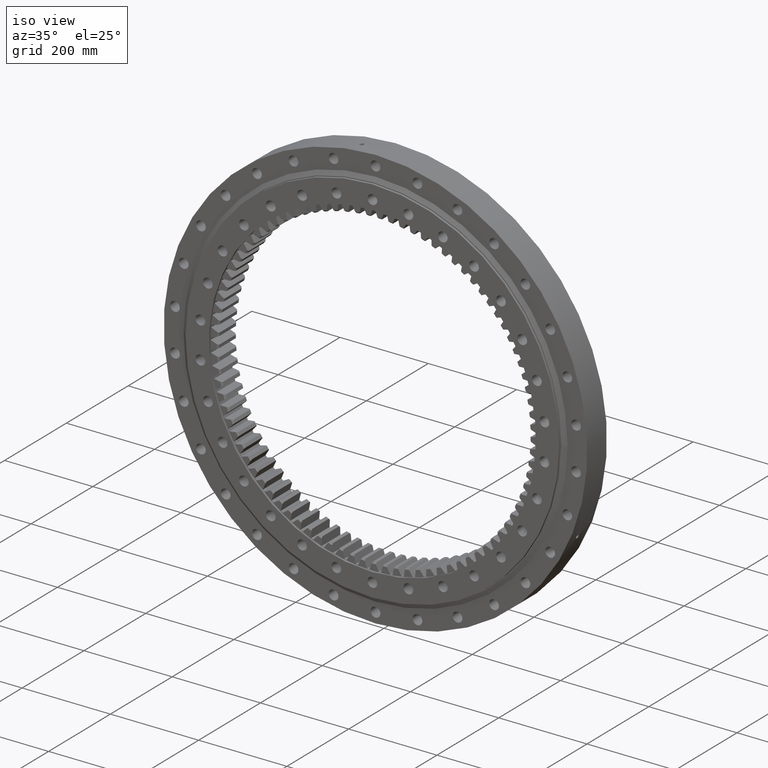
[diagram: clean part render]
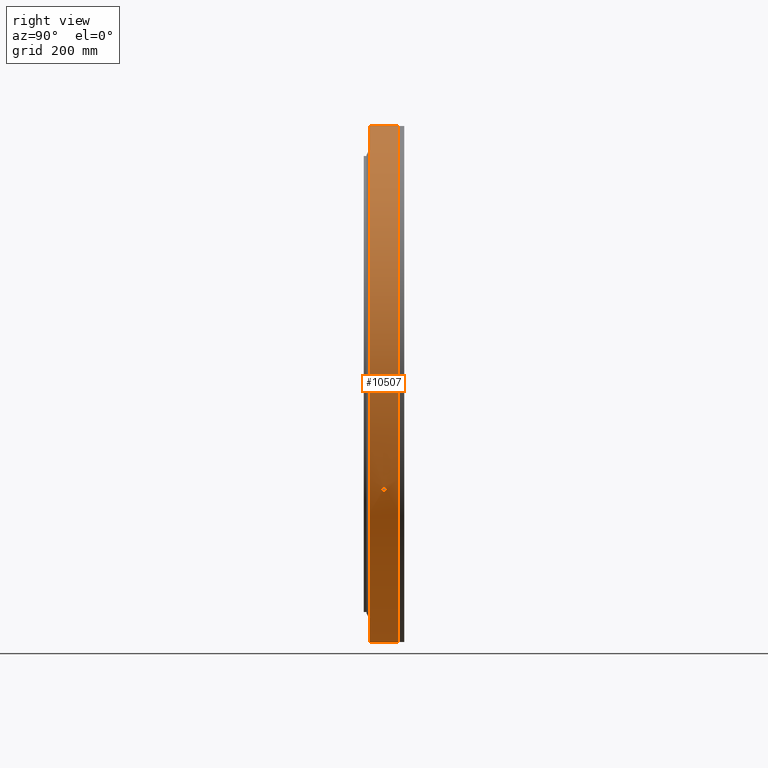
[diagram: tour spotlight — one face highlighted and labeled with its STEP entity id]
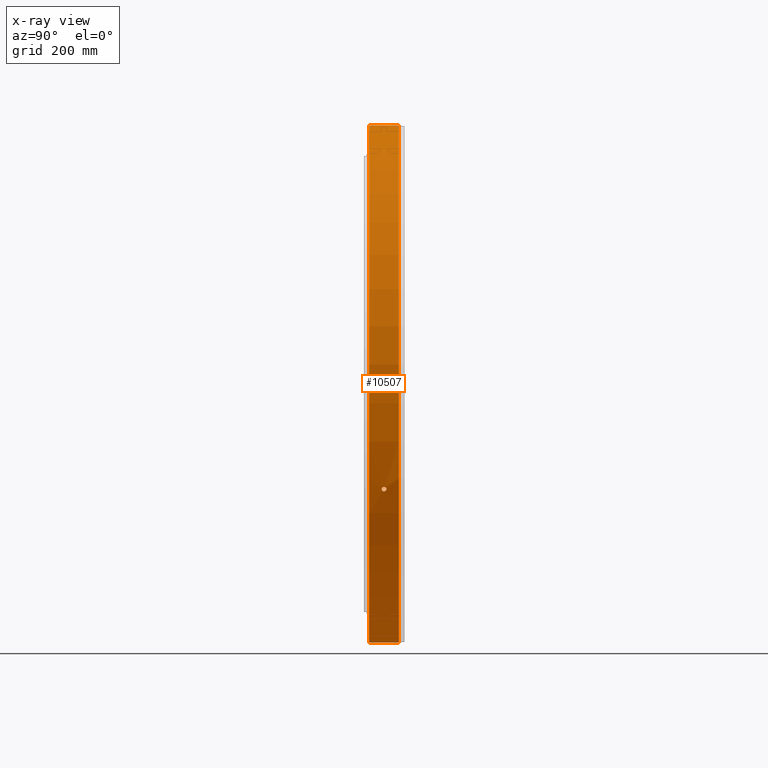
[diagram: x-ray of the same camera — body ghosted, this tour face saturated]
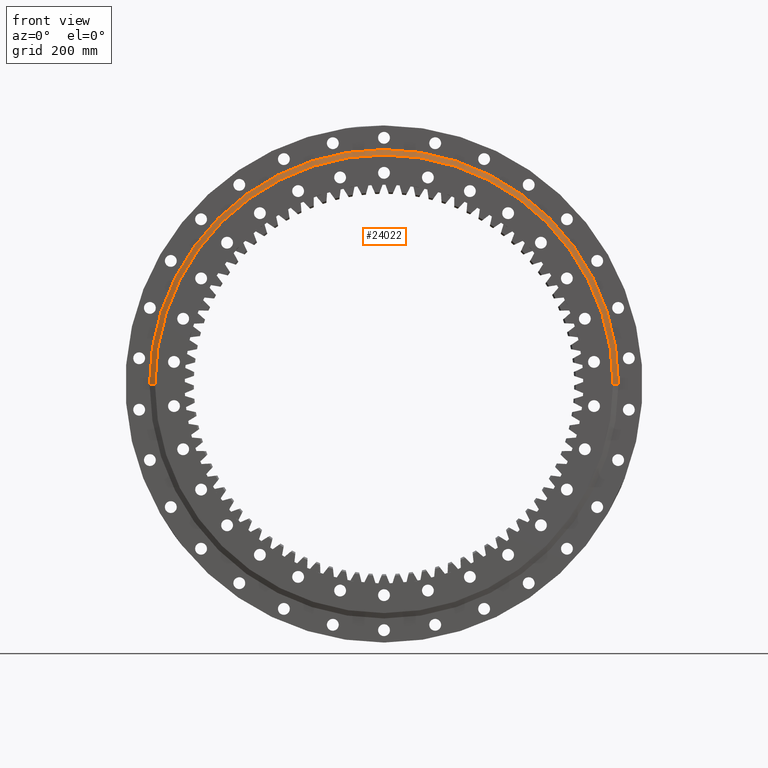
[diagram: tour spotlight — one face highlighted and labeled with its STEP entity id]
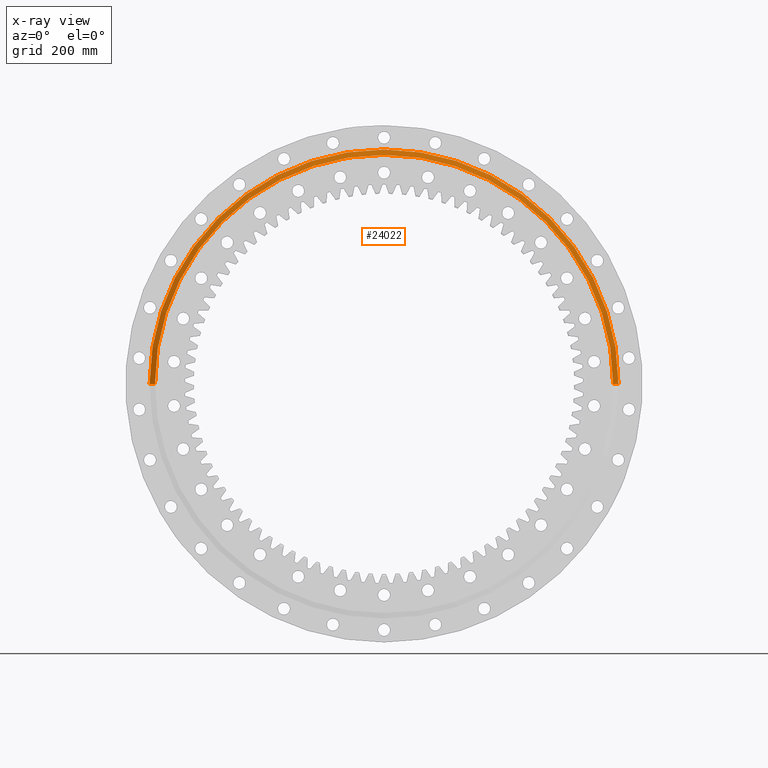
[diagram: x-ray of the same camera — body ghosted, this tour face saturated]
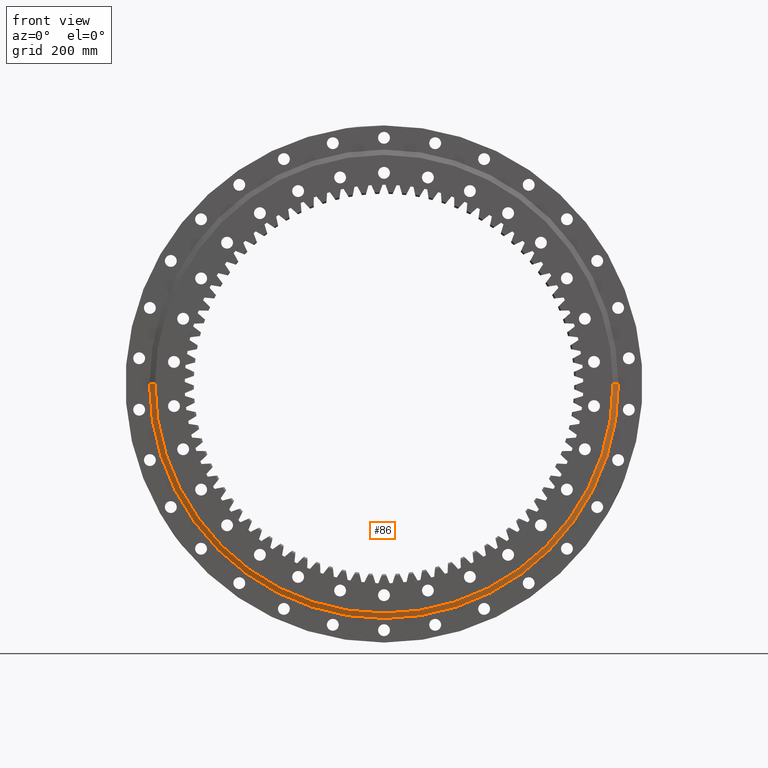
[diagram: tour spotlight — one face highlighted and labeled with its STEP entity id]
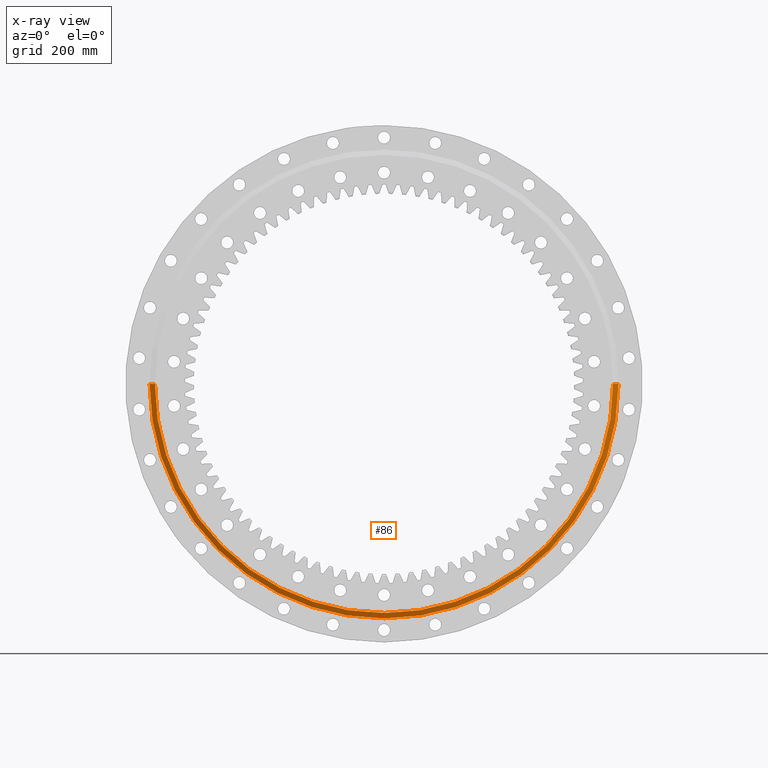
[diagram: x-ray of the same camera — body ghosted, this tour face saturated]
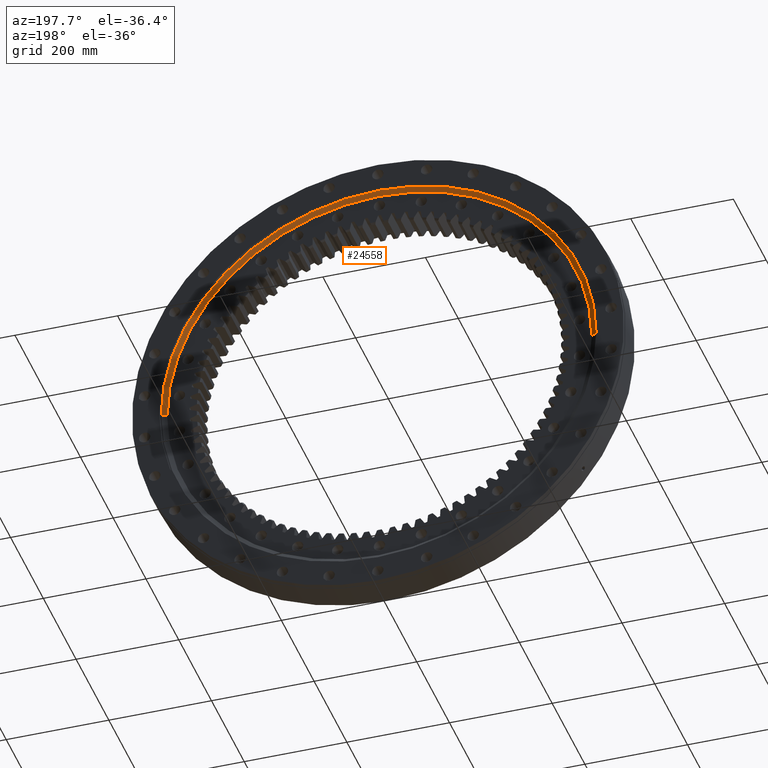
[diagram: tour spotlight — one face highlighted and labeled with its STEP entity id]
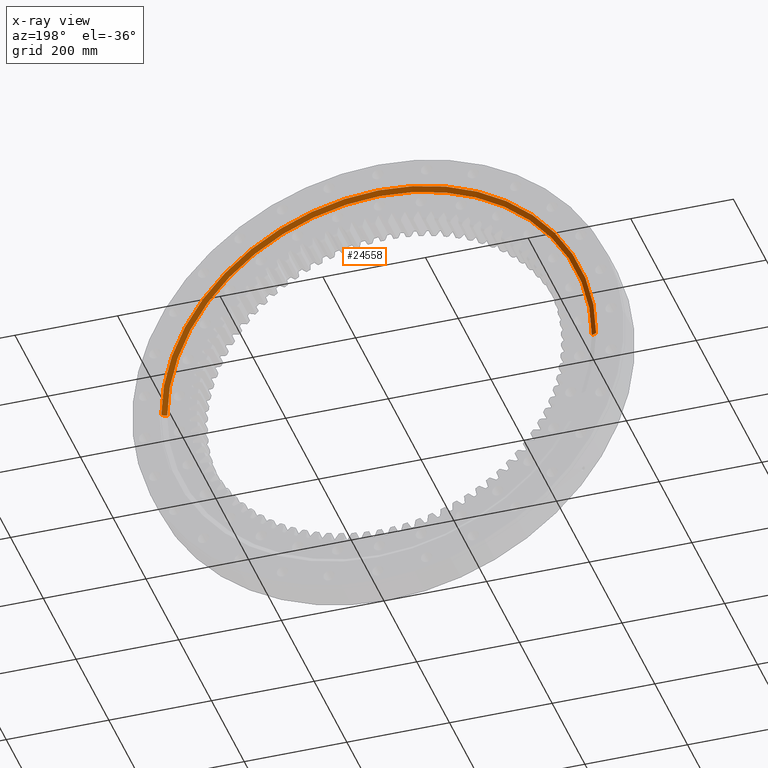
[diagram: x-ray of the same camera — body ghosted, this tour face saturated]
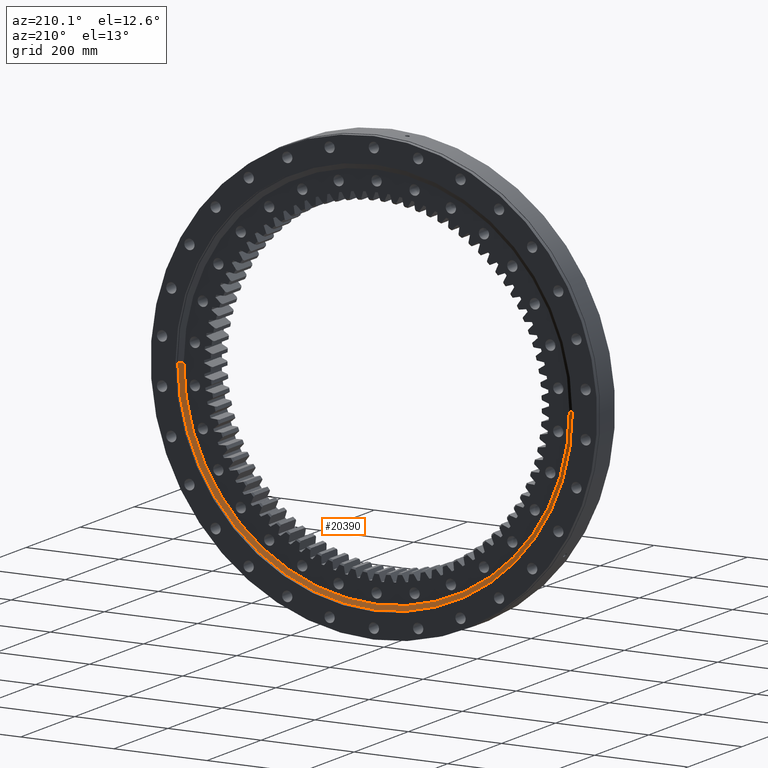
[diagram: tour spotlight — one face highlighted and labeled with its STEP entity id]
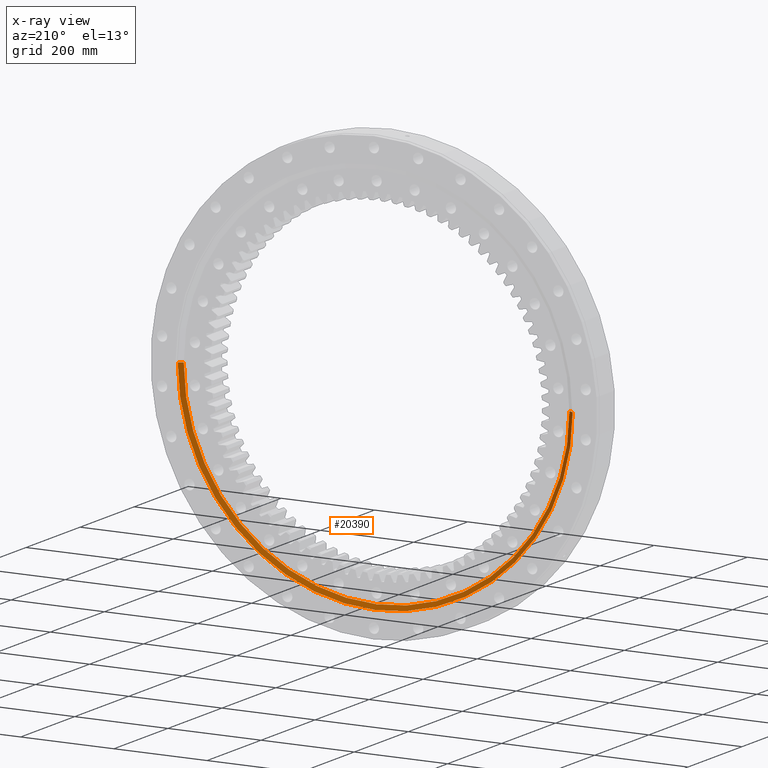
[diagram: x-ray of the same camera — body ghosted, this tour face saturated]
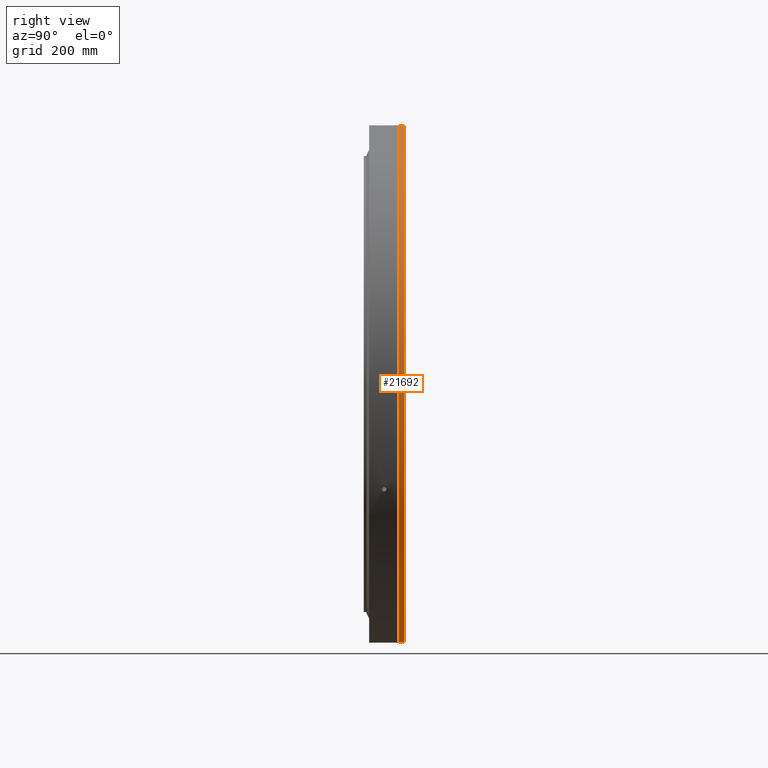
[diagram: tour spotlight — one face highlighted and labeled with its STEP entity id]
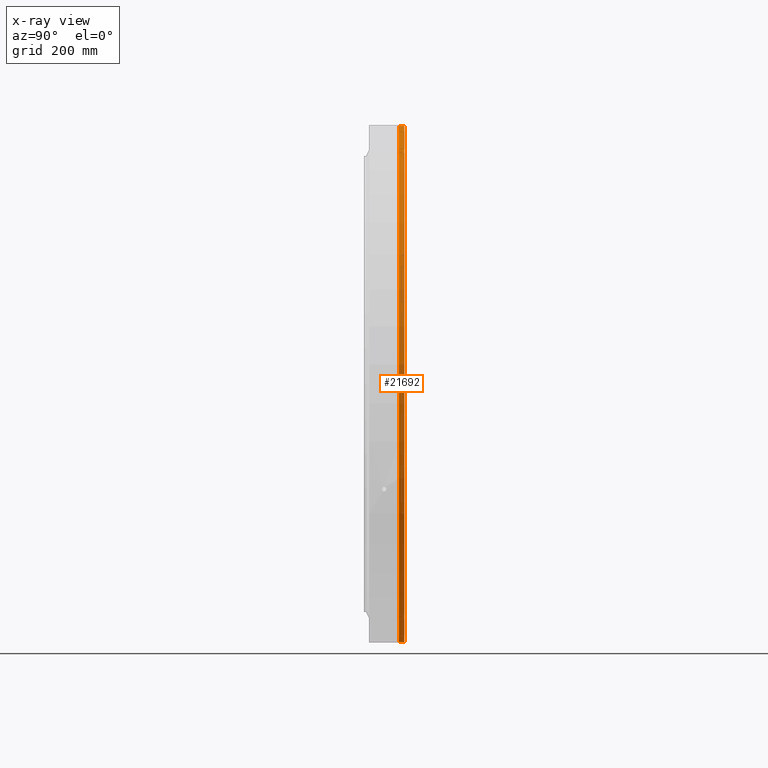
[diagram: x-ray of the same camera — body ghosted, this tour face saturated]
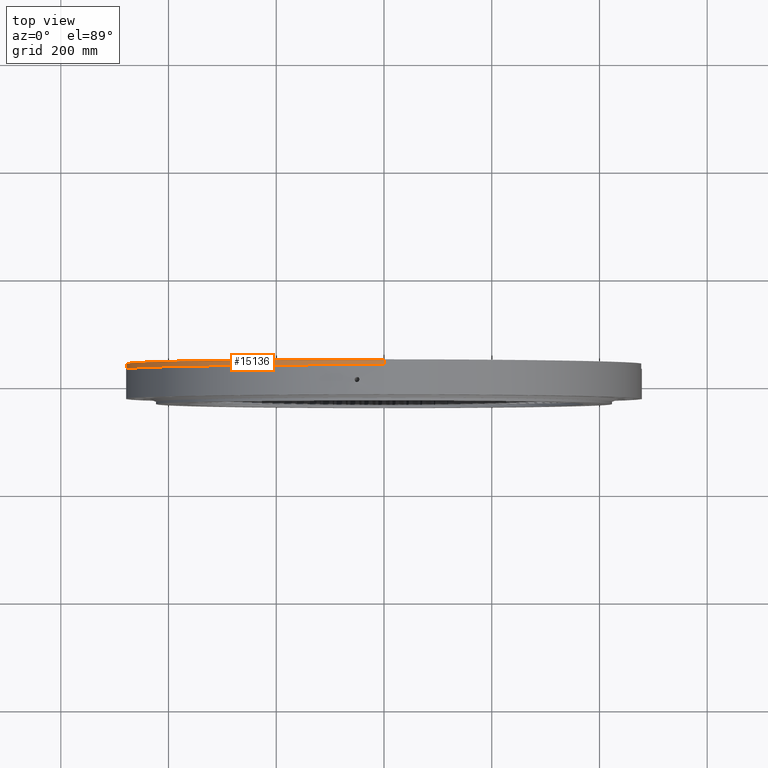
[diagram: tour spotlight — one face highlighted and labeled with its STEP entity id]
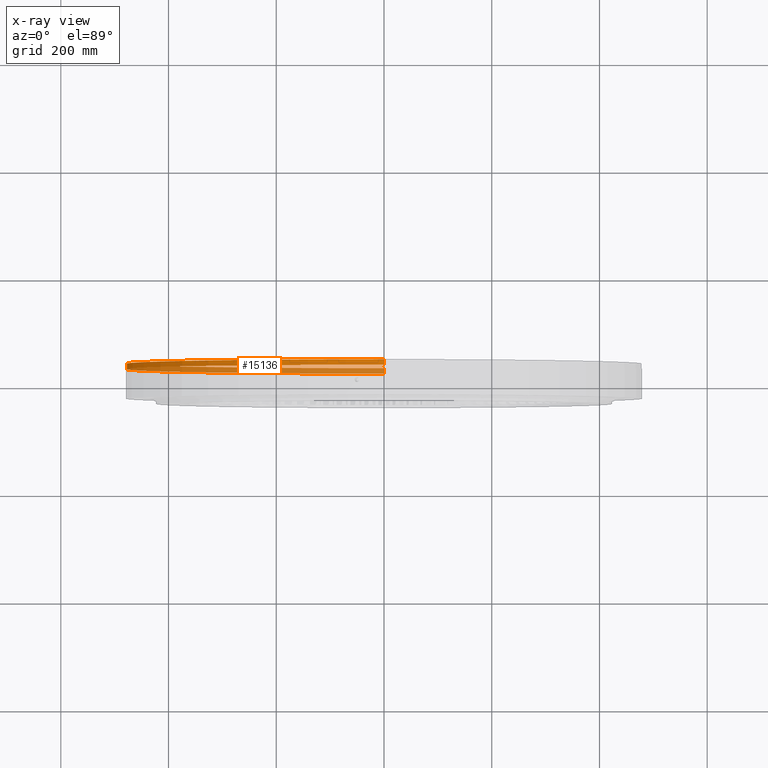
[diagram: x-ray of the same camera — body ghosted, this tour face saturated]
A machine part: a face-by-face anatomy tour. The part has 738 B-rep faces; the first image is the clean iso view, then the 7 largest visible faces are spotlighted one at a time (largest first), each with its STEP entity span.

Face 1 — right view, entity #10507. An x-ray twin of the same camera follows (body ghosted, this face saturated) — the face is partly hidden behind the body. In plain terms, the highlighted cylindrical surface (partial cylindrical patch) has radius 480 mm, axis along (0, -1, -0).
Definition (entity closure, byte-faithful):
#119 = CARTESIAN_POINT ( 'NONE',  ( 440.1311284732452100, 1.995682324606422400, -191.5322492682324500 ) ) ;
#203 = CARTESIAN_POINT ( 'NONE',  ( 438.2615825801492000, 4.470844770991369000, -195.7724917276373400 ) ) ;
#296 = CARTESIAN_POINT ( 'NONE',  ( 436.6644584664019200, 0.5919618365307528500, -199.3091920096234200 ) ) ;
#778 = CARTESIAN_POINT ( 'NONE',  ( 436.6640575047874800, -0.5854540645739583200, -199.3100704715085400 ) ) ;
#855 = CARTESIAN_POINT ( 'NONE',  ( 438.2605519447464000, -4.470445786932987900, -195.7747974633172700 ) ) ;
#949 = CARTESIAN_POINT ( 'NONE',  ( 440.1308055285157400, -1.997038219429903000, -191.5329910672971600 ) ) ;
#1489 = LINE ( 'NONE', #7637, #11437 ) ;
#2122 = CARTESIAN_POINT ( 'NONE',  ( 439.9454319620413100, 2.743369639967448300, -191.9584422957777600 ) ) ;
#2210 = CARTESIAN_POINT ( 'NONE',  ( 437.9110522948454300, 4.270948294085532600, -196.5552962693009000 ) ) ;
#2286 = CARTESIAN_POINT ( 'NONE',  ( 436.6522342516781800, -7.333038119292233300E-009, -199.3359634461818900 ) ) ;
#2792 = CARTESIAN_POINT ( 'NONE',  ( 436.7476759622354600, -1.449886345495770000, -199.1267940246320900 ) ) ;
#2874 = CARTESIAN_POINT ( 'NONE',  ( 438.6209584255698800, -4.500248141122877900, -194.9660043660032900 ) ) ;
#2875 = CIRCLE ( 'NONE', #23229, 480.0000000000000000 ) ;
#2960 = CARTESIAN_POINT ( 'NONE',  ( 440.2548680998386900, -1.173646348569838500, -191.2476261408578200 ) ) ;
#3414 = ORIENTED_EDGE ( 'NONE', *, *, #6204, .F. ) ;
#3417 = CARTESIAN_POINT ( 'NONE',  ( 2.601341135008604100E-015, -22.16364734299516900, -7.744460120454373600E-016 ) ) ;
#3821 = VERTEX_POINT ( 'NONE', #13753 ) ;
#4061 = CARTESIAN_POINT ( 'NONE',  ( 440.3128640393603100, -7.333038592388355300E-009, -191.1140543273984300 ) ) ;
#4131 = CARTESIAN_POINT ( 'NONE',  ( 439.7029879514782400, 3.390113224750384000, -192.5131826724582400 ) ) ;
#4217 = CARTESIAN_POINT ( 'NONE',  ( 437.5793837202563700, 3.904600354785765500, -197.2925300280704400 ) ) ;
#4224 = FACE_BOUND ( 'NONE', #24033, .T. ) ;
#4530 = CARTESIAN_POINT ( 'NONE',  ( 436.6522342516781800, -7.333038119292233300E-009, -199.3359634461818900 ) ) ;
#4805 = CARTESIAN_POINT ( 'NONE',  ( 436.8982438213087100, -2.252556029768258700, -198.7962565771561300 ) ) ;
#4887 = CARTESIAN_POINT ( 'NONE',  ( 438.9730500401763600, -4.357378810567926300, -194.1719444030119100 ) ) ;
#4981 = CARTESIAN_POINT ( 'NONE',  ( 440.3128640393601400, -0.2972601088633504700, -191.1140543273984300 ) ) ;
#5730 = DIRECTION ( 'NONE',  ( 1.173697223544192200E-016, -1.000000000000000000, -3.494217355385783800E-017 ) ) ;
#6126 = CARTESIAN_POINT ( 'NONE',  ( 439.4143031971442500, 3.905344578566756200, -193.1712469880785400 ) ) ;
#6204 = EDGE_CURVE ( 'NONE', #25096, #3821, #2875, .T. ) ;
#6213 = CARTESIAN_POINT ( 'NONE',  ( 437.2850026581897400, 3.392749870917849200, -197.9441097680219200 ) ) ;
#6700 = CARTESIAN_POINT ( 'NONE',  ( 436.6522342516781200, -0.2936301318778762900, -199.3359634461818900 ) ) ;
#6787 = CARTESIAN_POINT ( 'NONE',  ( 437.1114622943250100, -2.972154368278949300, -198.3270342164488500 ) ) ;
#6869 = CARTESIAN_POINT ( 'NONE',  ( 439.3085453491581200, -4.045622942340140900, -193.4116761411514700 ) ) ;
#7151 = ORIENTED_EDGE ( 'NONE', *, *, #10549, .F. ) ;
#7396 = DIRECTION ( 'NONE',  ( 5.551115123125782700E-017, -3.614007241618347900E-017, 1.000000000000000000 ) ) ;
#7566 = CARTESIAN_POINT ( 'NONE',  ( -8.282705781506809400E-014, -22.16364734299515100, -480.0000000000000000 ) ) ;
#7628 = VERTEX_POINT ( 'NONE', #4530 ) ;
#7637 = CARTESIAN_POINT ( 'NONE',  ( 2.924669372601236100E-014, -22.16364734299518700, 480.0000000000000000 ) ) ;
#8034 = CARTESIAN_POINT ( 'NONE',  ( 440.3128640393603100, -7.333038592388355300E-009, -191.1140543273984300 ) ) ;
#8116 = CARTESIAN_POINT ( 'NONE',  ( 439.0903211503485300, 4.269501079124923500, -193.9065836883990500 ) ) ;
#8205 = CARTESIAN_POINT ( 'NONE',  ( 437.0344114235065300, 2.744956082407460100, -198.4967248796985500 ) ) ;
#8206 = VERTEX_POINT ( 'NONE', #4061 ) ;
#8257 = VECTOR ( 'NONE', #9538, 1000.000000000000000 ) ;
#8642 = CARTESIAN_POINT ( 'NONE',  ( -3.227667364746538500E-015, 27.50000000000008500, 9.609097727310935600E-016 ) ) ;
#8776 = CARTESIAN_POINT ( 'NONE',  ( 437.3779233266320100, -3.577391969612102200, -197.7387469902961900 ) ) ;
#8858 = CARTESIAN_POINT ( 'NONE',  ( 439.6092046346710700, -3.581691690546928700, -192.7272865101139700 ) ) ;
#8989 = ORIENTED_EDGE ( 'NONE', *, *, #18031, .T. ) ;
#9067 = AXIS2_PLACEMENT_3D ( 'NONE', #8642, #22527, #10648 ) ;
#9152 = EDGE_CURVE ( 'NONE', #16332, #19379, #11380, .T. ) ;
#9538 = DIRECTION ( 'NONE',  ( 1.173697223544192200E-016, -1.000000000000000000, -3.494217355385783800E-017 ) ) ;
#9713 = ORIENTED_EDGE ( 'NONE', *, *, #20646, .T. ) ;
#10021 = CARTESIAN_POINT ( 'NONE',  ( 440.3012484282037300, 0.5896850171849633600, -191.1408221716029100 ) ) ;
#10109 = CARTESIAN_POINT ( 'NONE',  ( 438.7403720503958800, 4.471354070360739300, -194.6971245443903300 ) ) ;
#10199 = CARTESIAN_POINT ( 'NONE',  ( 436.8411724755165400, 1.994554482004947700, -198.9215996007770000 ) ) ;
#10507 = ADVANCED_FACE ( 'NONE', ( #25327, #4224 ), #14174, .T. ) ;
#10549 = EDGE_CURVE ( 'NONE', #19379, #25096, #18821, .T. ) ;
#10609 = CARTESIAN_POINT ( 'NONE',  ( 2.664535259100375700E-014, 27.50000000000004600, 480.0000000000000000 ) ) ;
#10648 = DIRECTION ( 'NONE',  ( -5.551115123125783900E-017, 8.673617379884035500E-017, -1.000000000000000000 ) ) ;
#10791 = CARTESIAN_POINT ( 'NONE',  ( 437.6854398399182700, -4.042875762597478900, -197.0571738247368200 ) ) ;
#10871 = CARTESIAN_POINT ( 'NONE',  ( 439.8687916001911200, -2.976678462919610400, -192.1340401450461300 ) ) ;
#11380 = CIRCLE ( 'NONE', #9067, 480.0000000000000000 ) ;
#11437 = VECTOR ( 'NONE', #5730, 1000.000000000000000 ) ;
#12023 = CARTESIAN_POINT ( 'NONE',  ( 440.2212308059357600, 1.450672711516713700, -191.3250655522891500 ) ) ;
#12108 = CARTESIAN_POINT ( 'NONE',  ( 438.3830887518495800, 4.500103738460542700, -195.5002650725334100 ) ) ;
#12186 = CARTESIAN_POINT ( 'NONE',  ( 436.7122045642362900, 1.168563050024399300, -199.2045523875640600 ) ) ;
#12772 = CARTESIAN_POINT ( 'NONE',  ( 438.0256353755420400, -4.355728442268895300, -196.2998356254257700 ) ) ;
#12850 = CARTESIAN_POINT ( 'NONE',  ( 440.0747494528846500, -2.259570114722869900, -191.6617904897645100 ) ) ;
#13384 = DIRECTION ( 'NONE',  ( 1.173697223544192200E-016, -1.000000000000000000, -3.494217355385783800E-017 ) ) ;
#13753 = CARTESIAN_POINT ( 'NONE',  ( 2.987301995575027600E-014, -27.49999999999993200, 480.0000000000000000 ) ) ;
#13800 = CARTESIAN_POINT ( 'NONE',  ( -8.542839895007671600E-014, 27.50000000000012800, -480.0000000000000000 ) ) ;
#14047 = CARTESIAN_POINT ( 'NONE',  ( 440.0759564968296900, 2.254171555036000200, -191.6590180145173300 ) ) ;
#14125 = CARTESIAN_POINT ( 'NONE',  ( 438.0258593772684900, 4.355941555043546700, -196.2993372370629600 ) ) ;
#14174 = CYLINDRICAL_SURFACE ( 'NONE', #21224, 480.0000000000000000 ) ;
#14211 = CARTESIAN_POINT ( 'NONE',  ( 436.6522342516782400, 0.2936964174255321000, -199.3359634461818400 ) ) ;
#14687 = CARTESIAN_POINT ( 'NONE',  ( 436.7118082642534800, -1.165415293260505100, -199.2054211874463800 ) ) ;
#14780 = CARTESIAN_POINT ( 'NONE',  ( 438.3795997497057300, -4.499748685515051200, -195.5080933155906800 ) ) ;
#14862 = CARTESIAN_POINT ( 'NONE',  ( 440.2204890513358500, -1.455749924503497700, -191.3267719420573500 ) ) ;
#16018 = CARTESIAN_POINT ( 'NONE',  ( 439.8693827544266200, 2.974981823169037900, -192.1326865251639900 ) ) ;
#16103 = CARTESIAN_POINT ( 'NONE',  ( 437.6876623621948300, 4.045564435084286500, -197.0522378188300600 ) ) ;
#16332 = VERTEX_POINT ( 'NONE', #10609 ) ;
#16682 = CARTESIAN_POINT ( 'NONE',  ( 436.8406021134912300, -1.991447610567026900, -198.9228516336532700 ) ) ;
#16723 = ORIENTED_EDGE ( 'NONE', *, *, #23805, .T. ) ;
#16768 = CARTESIAN_POINT ( 'NONE',  ( 438.7401353666558100, -4.471227366295399200, -194.6976534868103700 ) ) ;
#16842 = CARTESIAN_POINT ( 'NONE',  ( 440.3012524025802500, -0.5914365197641752200, -191.1408133362392600 ) ) ;
#17168 = DIRECTION ( 'NONE',  ( 5.551115123125782700E-017, -3.614007241618347900E-017, 1.000000000000000000 ) ) ;
#17640 = B_SPLINE_CURVE_WITH_KNOTS ( 'NONE', 3,
 ( #8034, #19919, #10021, #23922, #12023, #119, #14047, #2122, #16018, #4131, #18015, #6126, #20000, #8116, #21992, #10109, #24000, #12108, #203, #14125, #2210, #16103, #4217, #18097, #6213, #20085, #8205, #22079, #10199, #24085, #12186, #296, #14211, #2286 ),
 .UNSPECIFIED., .F., .F.,
 ( 4, 2, 2, 2, 2, 2, 2, 2, 2, 2, 2, 2, 2, 2, 2, 2, 4 ),
 ( 4.793884443244766800E-018, 0.0008793209207578181400, 0.001758641841515631500, 0.002637962762273445100, 0.003517283683031258200, 0.004396604603789071800, 0.005275925524546885800, 0.006155246445304699000, 0.007034567366062512200, 0.007913888286820325300, 0.008793209207578138500, 0.009672530128335951600, 0.01055185104909376600, 0.01143117196985158000, 0.01231049289060939300, 0.01318981381136720600, 0.01406913473212501900 ),
 .UNSPECIFIED. ) ;
#17938 = B_SPLINE_CURVE_WITH_KNOTS ( 'NONE', 3,
 ( #20575, #6700, #778, #14687, #2792, #16682, #4805, #18677, #6787, #20663, #8776, #22661, #10791, #24655, #12772, #855, #14780, #2874, #16768, #4887, #18765, #6869, #20747, #8858, #22749, #10871, #24742, #12850, #949, #14862, #2960, #16842, #4981, #18855 ),
 .UNSPECIFIED., .F., .F.,
 ( 4, 2, 2, 2, 2, 2, 2, 2, 2, 2, 2, 2, 2, 2, 2, 2, 4 ),
 ( 0.01406913473212501900, 0.01494825715143687000, 0.01582737957074872200, 0.01670650199006057000, 0.01758562440937242200, 0.01846474682868427100, 0.01934386924799612300, 0.02022299166730797500, 0.02110211408661982800, 0.02198123650593168000, 0.02286035892524352800, 0.02373948134455537700, 0.02461860376386722900, 0.02549772618317908100, 0.02637684860249093300, 0.02725597102180278600, 0.02813509344111463400 ),
 .UNSPECIFIED. ) ;
#18015 = CARTESIAN_POINT ( 'NONE',  ( 439.6120747386226000, 3.576389606019484600, -192.7207416475063200 ) ) ;
#18031 = EDGE_CURVE ( 'NONE', #16332, #3821, #1489, .T. ) ;
#18097 = CARTESIAN_POINT ( 'NONE',  ( 437.3787020737008200, 3.578754795863977400, -197.7370234280906500 ) ) ;
#18213 = ORIENTED_EDGE ( 'NONE', *, *, #9152, .F. ) ;
#18677 = CARTESIAN_POINT ( 'NONE',  ( 437.0344572140178300, -2.745438163182617700, -198.4966253891563500 ) ) ;
#18765 = CARTESIAN_POINT ( 'NONE',  ( 439.0883212528946700, -4.271335216213850000, -193.9111152663451500 ) ) ;
#18821 = LINE ( 'NONE', #7566, #8257 ) ;
#18825 = EDGE_LOOP ( 'NONE', ( #7151, #18213, #8989, #3414 ) ) ;
#18855 = CARTESIAN_POINT ( 'NONE',  ( 440.3128640393603100, -7.333038592388355300E-009, -191.1140543273984300 ) ) ;
#19379 = VERTEX_POINT ( 'NONE', #13800 ) ;
#19919 = CARTESIAN_POINT ( 'NONE',  ( 440.3128640393601400, 0.2973272140416623500, -191.1140543273984300 ) ) ;
#20000 = CARTESIAN_POINT ( 'NONE',  ( 439.3088223895885600, 4.045121110633030700, -193.4110438839911400 ) ) ;
#20085 = CARTESIAN_POINT ( 'NONE',  ( 437.1115523127528500, 2.972766249274045900, -198.3268387696514000 ) ) ;
#20236 = CARTESIAN_POINT ( 'NONE',  ( -8.542839895007671600E-014, -27.49999999999989700, -480.0000000000000000 ) ) ;
#20575 = CARTESIAN_POINT ( 'NONE',  ( 436.6522342516781800, -7.333038119292233300E-009, -199.3359634461818900 ) ) ;
#20646 = EDGE_CURVE ( 'NONE', #7628, #8206, #17938, .T. ) ;
#20663 = CARTESIAN_POINT ( 'NONE',  ( 437.2825979858845900, -3.387315568996350100, -197.9494189657819700 ) ) ;
#20747 = CARTESIAN_POINT ( 'NONE',  ( 439.4126606098073500, -3.907536243736583700, -193.1749814569425000 ) ) ;
#21224 = AXIS2_PLACEMENT_3D ( 'NONE', #3417, #13384, #7396 ) ;
#21992 = CARTESIAN_POINT ( 'NONE',  ( 438.9756908710032800, 4.355842567544418600, -194.1659784748578700 ) ) ;
#22079 = CARTESIAN_POINT ( 'NONE',  ( 436.8995306654104000, 2.257525879738870400, -198.7934271061337800 ) ) ;
#22527 = DIRECTION ( 'NONE',  ( -1.173697223544192200E-016, 1.000000000000000000, 8.822830751849692900E-017 ) ) ;
#22661 = CARTESIAN_POINT ( 'NONE',  ( 437.5793015567401200, -3.904564935424450000, -197.2927133067140300 ) ) ;
#22749 = CARTESIAN_POINT ( 'NONE',  ( 439.7022216212733400, -3.391801529915579900, -192.5149332067183500 ) ) ;
#23229 = AXIS2_PLACEMENT_3D ( 'NONE', #23318, #23962, #17168 ) ;
#23318 = CARTESIAN_POINT ( 'NONE',  ( 3.227667364746518000E-015, -27.49999999999991500, -9.609097727310874400E-016 ) ) ;
#23805 = EDGE_CURVE ( 'NONE', #8206, #7628, #17640, .T. ) ;
#23922 = CARTESIAN_POINT ( 'NONE',  ( 440.2557083482652700, 1.164868335676053600, -191.2456915452949900 ) ) ;
#23962 = DIRECTION ( 'NONE',  ( 1.173697223544192200E-016, -1.000000000000000000, -3.494217355385783800E-017 ) ) ;
#24000 = CARTESIAN_POINT ( 'NONE',  ( 438.6218480214243400, 4.499895681576250100, -194.9639981773900700 ) ) ;
#24033 = EDGE_LOOP ( 'NONE', ( #16723, #9713 ) ) ;
#24085 = CARTESIAN_POINT ( 'NONE',  ( 436.7475073110189800, 1.449119632500600800, -199.1271644330003000 ) ) ;
#24655 = CARTESIAN_POINT ( 'NONE',  ( 437.9085197302924300, -4.268830055452625900, -196.5609380097672000 ) ) ;
#24742 = CARTESIAN_POINT ( 'NONE',  ( 439.9433277297841900, -2.750359227237958200, -191.9632658239732500 ) ) ;
#25096 = VERTEX_POINT ( 'NONE', #20236 ) ;
#25327 = FACE_OUTER_BOUND ( 'NONE', #18825, .T. ) ;

Face 2 — front view, entity #24022. An x-ray twin of the same camera follows (body ghosted, this face saturated) — the face is partly hidden behind the body. In plain terms, the highlighted conical surface has half-angle 63.206 deg.
Definition (entity closure, byte-faithful):
#424 = DIRECTION ( 'NONE',  ( -1.000000000000000000, 1.794893190898989200E-016, 0.0000000000000000000 ) ) ;
#879 = CIRCLE ( 'NONE', #24513, 425.2500000000000000 ) ;
#1335 = CARTESIAN_POINT ( 'NONE',  ( -8.869075346349655200E-015, -27.50000000000009600, 0.0000000000000000000 ) ) ;
#1679 = ORIENTED_EDGE ( 'NONE', *, *, #17052, .F. ) ;
#2243 = CARTESIAN_POINT ( 'NONE',  ( 425.2500000000000000, -32.55000000000008200, 5.207810513374119700E-014 ) ) ;
#3347 = DIRECTION ( 'NONE',  ( -1.000000000000000000, 1.833366568522300500E-016, 0.0000000000000000000 ) ) ;
#3579 = AXIS2_PLACEMENT_3D ( 'NONE', #14333, #22217, #424 ) ;
#3614 = DIRECTION ( 'NONE',  ( -0.8926347946143761100, 0.4507805712802520100, 0.0000000000000000000 ) ) ;
#4062 = CARTESIAN_POINT ( 'NONE',  ( 425.2500000000000000, -32.55000000000008200, 5.269042853331487300E-014 ) ) ;
#5451 = VERTEX_POINT ( 'NONE', #17404 ) ;
#7148 = LINE ( 'NONE', #2243, #11795 ) ;
#7466 = EDGE_CURVE ( 'NONE', #19815, #11210, #879, .T. ) ;
#7909 = DIRECTION ( 'NONE',  ( -1.000000000000000000, 1.794893190898989200E-016, 0.0000000000000000000 ) ) ;
#8251 = DIRECTION ( 'NONE',  ( 0.8926347946143763400, 0.4507805712802516700, 1.093162344032050900E-016 ) ) ;
#8787 = VECTOR ( 'NONE', #3614, 1000.000000000000100 ) ;
#9899 = CARTESIAN_POINT ( 'NONE',  ( -9.796714659370089600E-015, -32.55000000000001100, 0.0000000000000000000 ) ) ;
#11210 = VERTEX_POINT ( 'NONE', #4062 ) ;
#11795 = VECTOR ( 'NONE', #8251, 1000.000000000000100 ) ;
#12928 = AXIS2_PLACEMENT_3D ( 'NONE', #1335, #15239, #3347 ) ;
#13328 = CARTESIAN_POINT ( 'NONE',  ( -425.2500000000000000, -32.54999999999993300, 0.0000000000000000000 ) ) ;
#13594 = CARTESIAN_POINT ( 'NONE',  ( -425.2500000000000000, -32.54999999999993300, 0.0000000000000000000 ) ) ;
#14301 = CIRCLE ( 'NONE', #12928, 435.2500000000000000 ) ;
#14333 = CARTESIAN_POINT ( 'NONE',  ( -9.796714659370089600E-015, -32.55000000000001100, 0.0000000000000000000 ) ) ;
#15007 = CARTESIAN_POINT ( 'NONE',  ( 435.2500000000000000, -27.50000000000017800, 5.330275193288855500E-014 ) ) ;
#15239 = DIRECTION ( 'NONE',  ( 1.836909530733565900E-016, 1.000000000000000000, -0.0000000000000000000 ) ) ;
#15842 = CONICAL_SURFACE ( 'NONE', #3579, 425.2500000000000000, 1.103156723031674800 ) ;
#17052 = EDGE_CURVE ( 'NONE', #5451, #24233, #14301, .T. ) ;
#17404 = CARTESIAN_POINT ( 'NONE',  ( -435.2500000000000000, -27.50000000000001800, 0.0000000000000000000 ) ) ;
#18096 = LINE ( 'NONE', #13594, #8787 ) ;
#18775 = ORIENTED_EDGE ( 'NONE', *, *, #22085, .F. ) ;
#19126 = ORIENTED_EDGE ( 'NONE', *, *, #7466, .T. ) ;
#19815 = VERTEX_POINT ( 'NONE', #13328 ) ;
#21772 = DIRECTION ( 'NONE',  ( 1.836909530733565900E-016, 1.000000000000000000, -0.0000000000000000000 ) ) ;
#22085 = EDGE_CURVE ( 'NONE', #19815, #5451, #18096, .T. ) ;
#22217 = DIRECTION ( 'NONE',  ( 1.836909530733565900E-016, 1.000000000000000000, -0.0000000000000000000 ) ) ;
#22352 = ORIENTED_EDGE ( 'NONE', *, *, #24005, .T. ) ;
#22981 = FACE_OUTER_BOUND ( 'NONE', #24953, .T. ) ;
#24005 = EDGE_CURVE ( 'NONE', #11210, #24233, #7148, .T. ) ;
#24022 = ADVANCED_FACE ( 'NONE', ( #22981 ), #15842, .T. ) ;
#24233 = VERTEX_POINT ( 'NONE', #15007 ) ;
#24513 = AXIS2_PLACEMENT_3D ( 'NONE', #9899, #21772, #7909 ) ;
#24953 = EDGE_LOOP ( 'NONE', ( #19126, #22352, #1679, #18775 ) ) ;

Face 3 — front view, entity #86. An x-ray twin of the same camera follows (body ghosted, this face saturated) — the face is partly hidden behind the body. In plain terms, the highlighted conical surface has half-angle 63.206 deg.
Definition (entity closure, byte-faithful):
#86 = ADVANCED_FACE ( 'NONE', ( #8177 ), #2257, .T. ) ;
#372 = DIRECTION ( 'NONE',  ( -1.000000000000000000, 1.833366568522300500E-016, 0.0000000000000000000 ) ) ;
#672 = DIRECTION ( 'NONE',  ( -1.000000000000000000, 1.794893190898989200E-016, 0.0000000000000000000 ) ) ;
#698 = DIRECTION ( 'NONE',  ( 1.836909530733565900E-016, 1.000000000000000000, -0.0000000000000000000 ) ) ;
#2243 = CARTESIAN_POINT ( 'NONE',  ( 425.2500000000000000, -32.55000000000008200, 5.207810513374119700E-014 ) ) ;
#2257 = CONICAL_SURFACE ( 'NONE', #4342, 425.2500000000000000, 1.103156723031674800 ) ;
#3614 = DIRECTION ( 'NONE',  ( -0.8926347946143761100, 0.4507805712802520100, 0.0000000000000000000 ) ) ;
#4062 = CARTESIAN_POINT ( 'NONE',  ( 425.2500000000000000, -32.55000000000008200, 5.269042853331487300E-014 ) ) ;
#4342 = AXIS2_PLACEMENT_3D ( 'NONE', #18548, #698, #15024 ) ;
#4534 = CIRCLE ( 'NONE', #6510, 435.2500000000000000 ) ;
#5451 = VERTEX_POINT ( 'NONE', #17404 ) ;
#6510 = AXIS2_PLACEMENT_3D ( 'NONE', #24164, #12266, #372 ) ;
#7148 = LINE ( 'NONE', #2243, #11795 ) ;
#7578 = ORIENTED_EDGE ( 'NONE', *, *, #25697, .T. ) ;
#8177 = FACE_OUTER_BOUND ( 'NONE', #16851, .T. ) ;
#8251 = DIRECTION ( 'NONE',  ( 0.8926347946143763400, 0.4507805712802516700, 1.093162344032050900E-016 ) ) ;
#8787 = VECTOR ( 'NONE', #3614, 1000.000000000000100 ) ;
#11210 = VERTEX_POINT ( 'NONE', #4062 ) ;
#11795 = VECTOR ( 'NONE', #8251, 1000.000000000000100 ) ;
#12266 = DIRECTION ( 'NONE',  ( 1.836909530733565900E-016, 1.000000000000000000, -0.0000000000000000000 ) ) ;
#12577 = DIRECTION ( 'NONE',  ( 1.836909530733565900E-016, 1.000000000000000000, -0.0000000000000000000 ) ) ;
#13328 = CARTESIAN_POINT ( 'NONE',  ( -425.2500000000000000, -32.54999999999993300, 0.0000000000000000000 ) ) ;
#13594 = CARTESIAN_POINT ( 'NONE',  ( -425.2500000000000000, -32.54999999999993300, 0.0000000000000000000 ) ) ;
#15007 = CARTESIAN_POINT ( 'NONE',  ( 435.2500000000000000, -27.50000000000017800, 5.330275193288855500E-014 ) ) ;
#15024 = DIRECTION ( 'NONE',  ( -1.000000000000000000, 1.794893190898989200E-016, 0.0000000000000000000 ) ) ;
#15761 = CIRCLE ( 'NONE', #20569, 425.2500000000000000 ) ;
#15777 = ORIENTED_EDGE ( 'NONE', *, *, #20053, .F. ) ;
#16851 = EDGE_LOOP ( 'NONE', ( #19679, #7578, #22778, #15777 ) ) ;
#17404 = CARTESIAN_POINT ( 'NONE',  ( -435.2500000000000000, -27.50000000000001800, 0.0000000000000000000 ) ) ;
#18096 = LINE ( 'NONE', #13594, #8787 ) ;
#18548 = CARTESIAN_POINT ( 'NONE',  ( -9.796714659370089600E-015, -32.55000000000001100, 0.0000000000000000000 ) ) ;
#19679 = ORIENTED_EDGE ( 'NONE', *, *, #24005, .F. ) ;
#19815 = VERTEX_POINT ( 'NONE', #13328 ) ;
#20053 = EDGE_CURVE ( 'NONE', #24233, #5451, #4534, .T. ) ;
#20569 = AXIS2_PLACEMENT_3D ( 'NONE', #24459, #12577, #672 ) ;
#22085 = EDGE_CURVE ( 'NONE', #19815, #5451, #18096, .T. ) ;
#22778 = ORIENTED_EDGE ( 'NONE', *, *, #22085, .T. ) ;
#24005 = EDGE_CURVE ( 'NONE', #11210, #24233, #7148, .T. ) ;
#24164 = CARTESIAN_POINT ( 'NONE',  ( -8.869075346349655200E-015, -27.50000000000009600, 0.0000000000000000000 ) ) ;
#24233 = VERTEX_POINT ( 'NONE', #15007 ) ;
#24459 = CARTESIAN_POINT ( 'NONE',  ( -9.796714659370089600E-015, -32.55000000000001100, 0.0000000000000000000 ) ) ;
#25697 = EDGE_CURVE ( 'NONE', #11210, #19815, #15761, .T. ) ;

Face 4 — auxiliary view, entity #24558. An x-ray twin of the same camera follows (body ghosted, this face saturated) — the face is partly hidden behind the body. In plain terms, the highlighted conical surface has half-angle 63.206 deg.
Definition (entity closure, byte-faithful):
#575 = CARTESIAN_POINT ( 'NONE',  ( -423.7500000000000000, 32.55000000000008200, 0.0000000000000000000 ) ) ;
#588 = CONICAL_SURFACE ( 'NONE', #10598, 423.7500000000000000, 1.103156723031662300 ) ;
#1122 = CARTESIAN_POINT ( 'NONE',  ( -2.383867916485987700E-015, 32.55000000000000400, 0.0000000000000000000 ) ) ;
#2525 = DIRECTION ( 'NONE',  ( 1.836909530733565900E-016, 1.000000000000000000, -0.0000000000000000000 ) ) ;
#2574 = ORIENTED_EDGE ( 'NONE', *, *, #12512, .T. ) ;
#2646 = VERTEX_POINT ( 'NONE', #21989 ) ;
#3128 = DIRECTION ( 'NONE',  ( -1.000000000000000000, 1.801246795114560800E-016, 0.0000000000000000000 ) ) ;
#3636 = EDGE_LOOP ( 'NONE', ( #19672, #9169, #25197, #2574 ) ) ;
#4894 = DIRECTION ( 'NONE',  ( -1.000000000000000000, 1.844781460857511000E-016, 0.0000000000000000000 ) ) ;
#6891 = EDGE_CURVE ( 'NONE', #2646, #18881, #16819, .T. ) ;
#8439 = AXIS2_PLACEMENT_3D ( 'NONE', #16425, #2525, #4894 ) ;
#8741 = LINE ( 'NONE', #19273, #23955 ) ;
#9169 = ORIENTED_EDGE ( 'NONE', *, *, #6891, .F. ) ;
#9433 = DIRECTION ( 'NONE',  ( -0.8926347946143706700, 0.4507805712802632200, 0.0000000000000000000 ) ) ;
#10066 = VECTOR ( 'NONE', #9433, 999.9999999999998900 ) ;
#10306 = DIRECTION ( 'NONE',  ( -1.000000000000000000, 1.801246795114560800E-016, 0.0000000000000000000 ) ) ;
#10598 = AXIS2_PLACEMENT_3D ( 'NONE', #22184, #20098, #10306 ) ;
#10721 = LINE ( 'NONE', #21327, #10066 ) ;
#11255 = VERTEX_POINT ( 'NONE', #575 ) ;
#12020 = VERTEX_POINT ( 'NONE', #25274 ) ;
#12512 = EDGE_CURVE ( 'NONE', #11255, #12020, #19191, .T. ) ;
#15014 = DIRECTION ( 'NONE',  ( 1.836909530733565900E-016, 1.000000000000000000, -0.0000000000000000000 ) ) ;
#16425 = CARTESIAN_POINT ( 'NONE',  ( -3.311507229506455600E-015, 27.49999999999990800, 0.0000000000000000000 ) ) ;
#16819 = CIRCLE ( 'NONE', #8439, 413.7499999999999400 ) ;
#18881 = VERTEX_POINT ( 'NONE', #24512 ) ;
#19191 = CIRCLE ( 'NONE', #23100, 423.7500000000000000 ) ;
#19273 = CARTESIAN_POINT ( 'NONE',  ( 423.7500000000000000, 32.54999999999992600, 5.189440811386908800E-014 ) ) ;
#19672 = ORIENTED_EDGE ( 'NONE', *, *, #23057, .F. ) ;
#20098 = DIRECTION ( 'NONE',  ( 1.836909530733565900E-016, 1.000000000000000000, -0.0000000000000000000 ) ) ;
#20803 = EDGE_CURVE ( 'NONE', #2646, #11255, #10721, .T. ) ;
#21327 = CARTESIAN_POINT ( 'NONE',  ( -423.7500000000000000, 32.55000000000008200, 0.0000000000000000000 ) ) ;
#21701 = FACE_OUTER_BOUND ( 'NONE', #3636, .T. ) ;
#21989 = CARTESIAN_POINT ( 'NONE',  ( -413.7499999999999400, 27.49999999999998200, 0.0000000000000000000 ) ) ;
#22184 = CARTESIAN_POINT ( 'NONE',  ( -2.383867916485987700E-015, 32.55000000000000400, 0.0000000000000000000 ) ) ;
#23057 = EDGE_CURVE ( 'NONE', #18881, #12020, #8741, .T. ) ;
#23100 = AXIS2_PLACEMENT_3D ( 'NONE', #1122, #15014, #3128 ) ;
#23265 = DIRECTION ( 'NONE',  ( 0.8926347946143707900, 0.4507805712802628300, 1.093162344032044100E-016 ) ) ;
#23955 = VECTOR ( 'NONE', #23265, 1000.000000000000000 ) ;
#24512 = CARTESIAN_POINT ( 'NONE',  ( 413.7499999999999400, 27.49999999999982900, 5.128208471429541300E-014 ) ) ;
#24558 = ADVANCED_FACE ( 'NONE', ( #21701 ), #588, .F. ) ;
#25197 = ORIENTED_EDGE ( 'NONE', *, *, #20803, .T. ) ;
#25274 = CARTESIAN_POINT ( 'NONE',  ( 423.7500000000000000, 32.54999999999992600, 5.189440811386908800E-014 ) ) ;

Face 5 — auxiliary view, entity #20390. An x-ray twin of the same camera follows (body ghosted, this face saturated) — the face is partly hidden behind the body. In plain terms, the highlighted conical surface has half-angle 63.206 deg.
Definition (entity closure, byte-faithful):
#575 = CARTESIAN_POINT ( 'NONE',  ( -423.7500000000000000, 32.55000000000008200, 0.0000000000000000000 ) ) ;
#2065 = EDGE_LOOP ( 'NONE', ( #12933, #5722, #16096, #9539 ) ) ;
#2646 = VERTEX_POINT ( 'NONE', #21989 ) ;
#3315 = EDGE_CURVE ( 'NONE', #12020, #11255, #5756, .T. ) ;
#4824 = DIRECTION ( 'NONE',  ( -1.000000000000000000, 1.801246795114560800E-016, 0.0000000000000000000 ) ) ;
#5239 = EDGE_CURVE ( 'NONE', #18881, #2646, #25581, .T. ) ;
#5722 = ORIENTED_EDGE ( 'NONE', *, *, #23057, .T. ) ;
#5756 = CIRCLE ( 'NONE', #24672, 423.7500000000000000 ) ;
#7475 = DIRECTION ( 'NONE',  ( 1.836909530733565900E-016, 1.000000000000000000, -0.0000000000000000000 ) ) ;
#8142 = CARTESIAN_POINT ( 'NONE',  ( -3.311507229506455600E-015, 27.49999999999990800, 0.0000000000000000000 ) ) ;
#8741 = LINE ( 'NONE', #19273, #23955 ) ;
#9433 = DIRECTION ( 'NONE',  ( -0.8926347946143706700, 0.4507805712802632200, 0.0000000000000000000 ) ) ;
#9539 = ORIENTED_EDGE ( 'NONE', *, *, #20803, .F. ) ;
#9997 = AXIS2_PLACEMENT_3D ( 'NONE', #15381, #7475, #11474 ) ;
#10066 = VECTOR ( 'NONE', #9433, 999.9999999999998900 ) ;
#10143 = DIRECTION ( 'NONE',  ( 1.836909530733565900E-016, 1.000000000000000000, -0.0000000000000000000 ) ) ;
#10721 = LINE ( 'NONE', #21327, #10066 ) ;
#11255 = VERTEX_POINT ( 'NONE', #575 ) ;
#11474 = DIRECTION ( 'NONE',  ( -1.000000000000000000, 1.801246795114560800E-016, 0.0000000000000000000 ) ) ;
#12020 = VERTEX_POINT ( 'NONE', #25274 ) ;
#12707 = CARTESIAN_POINT ( 'NONE',  ( -2.383867916485987700E-015, 32.55000000000000400, 0.0000000000000000000 ) ) ;
#12933 = ORIENTED_EDGE ( 'NONE', *, *, #5239, .F. ) ;
#15381 = CARTESIAN_POINT ( 'NONE',  ( -2.383867916485987700E-015, 32.55000000000000400, 0.0000000000000000000 ) ) ;
#15883 = DIRECTION ( 'NONE',  ( -1.000000000000000000, 1.844781460857511000E-016, 0.0000000000000000000 ) ) ;
#15894 = AXIS2_PLACEMENT_3D ( 'NONE', #8142, #10143, #15883 ) ;
#16096 = ORIENTED_EDGE ( 'NONE', *, *, #3315, .T. ) ;
#16699 = DIRECTION ( 'NONE',  ( 1.836909530733565900E-016, 1.000000000000000000, -0.0000000000000000000 ) ) ;
#18168 = FACE_OUTER_BOUND ( 'NONE', #2065, .T. ) ;
#18881 = VERTEX_POINT ( 'NONE', #24512 ) ;
#19273 = CARTESIAN_POINT ( 'NONE',  ( 423.7500000000000000, 32.54999999999992600, 5.189440811386908800E-014 ) ) ;
#20390 = ADVANCED_FACE ( 'NONE', ( #18168 ), #22827, .F. ) ;
#20803 = EDGE_CURVE ( 'NONE', #2646, #11255, #10721, .T. ) ;
#21327 = CARTESIAN_POINT ( 'NONE',  ( -423.7500000000000000, 32.55000000000008200, 0.0000000000000000000 ) ) ;
#21989 = CARTESIAN_POINT ( 'NONE',  ( -413.7499999999999400, 27.49999999999998200, 0.0000000000000000000 ) ) ;
#22827 = CONICAL_SURFACE ( 'NONE', #9997, 423.7500000000000000, 1.103156723031662300 ) ;
#23057 = EDGE_CURVE ( 'NONE', #18881, #12020, #8741, .T. ) ;
#23265 = DIRECTION ( 'NONE',  ( 0.8926347946143707900, 0.4507805712802628300, 1.093162344032044100E-016 ) ) ;
#23955 = VECTOR ( 'NONE', #23265, 1000.000000000000000 ) ;
#24512 = CARTESIAN_POINT ( 'NONE',  ( 413.7499999999999400, 27.49999999999982900, 5.128208471429541300E-014 ) ) ;
#24672 = AXIS2_PLACEMENT_3D ( 'NONE', #12707, #16699, #4824 ) ;
#25274 = CARTESIAN_POINT ( 'NONE',  ( 423.7500000000000000, 32.54999999999992600, 5.189440811386908800E-014 ) ) ;
#25581 = CIRCLE ( 'NONE', #15894, 413.7499999999999400 ) ;

Face 6 — right view, entity #21692. An x-ray twin of the same camera follows (body ghosted, this face saturated) — the face is partly hidden behind the body. In plain terms, the highlighted cylindrical surface (partial cylindrical patch) has radius 479 mm, axis along (0, -1, -0).
Definition (entity closure, byte-faithful):
#460 = CARTESIAN_POINT ( 'NONE',  ( 2.218847685148177000E-014, 37.50000000000005000, 479.0000000000000000 ) ) ;
#491 = ORIENTED_EDGE ( 'NONE', *, *, #21286, .F. ) ;
#1032 = DIRECTION ( 'NONE',  ( 5.551115123125783900E-017, -8.691725140593606300E-017, 1.000000000000000000 ) ) ;
#1401 = EDGE_CURVE ( 'NONE', #20088, #17598, #25187, .T. ) ;
#3200 = CYLINDRICAL_SURFACE ( 'NONE', #6212, 479.0000000000000000 ) ;
#4328 = CARTESIAN_POINT ( 'NONE',  ( 3.376225319092274600E-014, -61.10955710955713700, 479.0000000000000000 ) ) ;
#5714 = ORIENTED_EDGE ( 'NONE', *, *, #16809, .T. ) ;
#6017 = DIRECTION ( 'NONE',  ( 1.173697223544192200E-016, -1.000000000000000000, -8.822830751849692900E-017 ) ) ;
#6107 = CARTESIAN_POINT ( 'NONE',  ( -7.807801136778049000E-014, -61.10955710955705200, -479.0000000000000000 ) ) ;
#6212 = AXIS2_PLACEMENT_3D ( 'NONE', #20111, #8229, #22103 ) ;
#6302 = DIRECTION ( 'NONE',  ( -1.173697223544192200E-016, 1.000000000000000000, 3.494217355385783800E-017 ) ) ;
#6312 = DIRECTION ( 'NONE',  ( 1.173697223544192200E-016, -1.000000000000000000, -8.822830751849692900E-017 ) ) ;
#6731 = EDGE_CURVE ( 'NONE', #13322, #20088, #24589, .T. ) ;
#7468 = ORIENTED_EDGE ( 'NONE', *, *, #6731, .F. ) ;
#8229 = DIRECTION ( 'NONE',  ( 1.173697223544192200E-016, -1.000000000000000000, -8.822830751849692900E-017 ) ) ;
#8712 = VECTOR ( 'NONE', #6312, 1000.000000000000000 ) ;
#11695 = ORIENTED_EDGE ( 'NONE', *, *, #1401, .F. ) ;
#12939 = DIRECTION ( 'NONE',  ( 1.173697223544192200E-016, -1.000000000000000000, -8.822830751849692900E-017 ) ) ;
#13322 = VERTEX_POINT ( 'NONE', #460 ) ;
#13776 = FACE_OUTER_BOUND ( 'NONE', #24663, .T. ) ;
#14524 = VERTEX_POINT ( 'NONE', #16823 ) ;
#14562 = DIRECTION ( 'NONE',  ( 5.551115123125782700E-017, -2.897241713531202100E-017, 1.000000000000000000 ) ) ;
#15588 = AXIS2_PLACEMENT_3D ( 'NONE', #20187, #6302, #14562 ) ;
#16809 = EDGE_CURVE ( 'NONE', #13322, #14524, #19886, .T. ) ;
#16823 = CARTESIAN_POINT ( 'NONE',  ( 2.336217407502596500E-014, 27.50000000000003900, 478.9999999999999400 ) ) ;
#17598 = VERTEX_POINT ( 'NONE', #18870 ) ;
#18870 = CARTESIAN_POINT ( 'NONE',  ( -8.906493909544934400E-014, 27.50000000000012100, -478.9999999999999400 ) ) ;
#19167 = AXIS2_PLACEMENT_3D ( 'NONE', #24824, #12939, #1032 ) ;
#19886 = LINE ( 'NONE', #4328, #8712 ) ;
#19906 = VECTOR ( 'NONE', #6017, 1000.000000000000000 ) ;
#20088 = VERTEX_POINT ( 'NONE', #22255 ) ;
#20111 = CARTESIAN_POINT ( 'NONE',  ( 7.172411751150241800E-015, -61.10955710955709500, -8.647884843640776400E-015 ) ) ;
#20187 = CARTESIAN_POINT ( 'NONE',  ( -4.401364588290727900E-015, 37.50000000000006400, 5.226948528401798900E-017 ) ) ;
#20606 = CIRCLE ( 'NONE', #19167, 478.9999999999999400 ) ;
#21286 = EDGE_CURVE ( 'NONE', #17598, #14524, #20606, .T. ) ;
#21692 = ADVANCED_FACE ( 'NONE', ( #13776 ), #3200, .T. ) ;
#22103 = DIRECTION ( 'NONE',  ( 5.551115123125783900E-017, -8.691725140593605000E-017, 1.000000000000000000 ) ) ;
#22255 = CARTESIAN_POINT ( 'NONE',  ( -8.906493909544935700E-014, 37.50000000000007800, -479.0000000000000000 ) ) ;
#24589 = CIRCLE ( 'NONE', #15588, 479.0000000000000000 ) ;
#24663 = EDGE_LOOP ( 'NONE', ( #11695, #7468, #5714, #491 ) ) ;
#24824 = CARTESIAN_POINT ( 'NONE',  ( -3.227667364746537700E-015, 27.50000000000007800, -8.300135899009499300E-016 ) ) ;
#25187 = LINE ( 'NONE', #6107, #19906 ) ;

Face 7 — top view, entity #15136. An x-ray twin of the same camera follows (body ghosted, this face saturated) — the face is partly hidden behind the body. In plain terms, the highlighted cylindrical surface (partial cylindrical patch) has radius 479 mm, axis along (0, -1, -0).
Definition (entity closure, byte-faithful):
#460 = CARTESIAN_POINT ( 'NONE',  ( 2.218847685148177000E-014, 37.50000000000005000, 479.0000000000000000 ) ) ;
#1387 = CIRCLE ( 'NONE', #12049, 479.0000000000000000 ) ;
#1401 = EDGE_CURVE ( 'NONE', #20088, #17598, #25187, .T. ) ;
#1936 = DIRECTION ( 'NONE',  ( 1.173697223544192200E-016, -1.000000000000000000, -8.822830751849692900E-017 ) ) ;
#3071 = EDGE_LOOP ( 'NONE', ( #17192, #16826, #10175, #5027 ) ) ;
#3818 = CYLINDRICAL_SURFACE ( 'NONE', #11066, 479.0000000000000000 ) ;
#4328 = CARTESIAN_POINT ( 'NONE',  ( 3.376225319092274600E-014, -61.10955710955713700, 479.0000000000000000 ) ) ;
#4363 = EDGE_CURVE ( 'NONE', #20088, #13322, #1387, .T. ) ;
#5006 = DIRECTION ( 'NONE',  ( 5.551115123125782700E-017, -2.897241713531202100E-017, 1.000000000000000000 ) ) ;
#5027 = ORIENTED_EDGE ( 'NONE', *, *, #16809, .F. ) ;
#6017 = DIRECTION ( 'NONE',  ( 1.173697223544192200E-016, -1.000000000000000000, -8.822830751849692900E-017 ) ) ;
#6107 = CARTESIAN_POINT ( 'NONE',  ( -7.807801136778049000E-014, -61.10955710955705200, -479.0000000000000000 ) ) ;
#6312 = DIRECTION ( 'NONE',  ( 1.173697223544192200E-016, -1.000000000000000000, -8.822830751849692900E-017 ) ) ;
#8712 = VECTOR ( 'NONE', #6312, 1000.000000000000000 ) ;
#10175 = ORIENTED_EDGE ( 'NONE', *, *, #17565, .F. ) ;
#10222 = CIRCLE ( 'NONE', #10958, 478.9999999999999400 ) ;
#10958 = AXIS2_PLACEMENT_3D ( 'NONE', #22852, #10961, #24849 ) ;
#10961 = DIRECTION ( 'NONE',  ( 1.173697223544192200E-016, -1.000000000000000000, -8.822830751849692900E-017 ) ) ;
#11066 = AXIS2_PLACEMENT_3D ( 'NONE', #23734, #1936, #25650 ) ;
#12049 = AXIS2_PLACEMENT_3D ( 'NONE', #19568, #18883, #5006 ) ;
#13322 = VERTEX_POINT ( 'NONE', #460 ) ;
#14524 = VERTEX_POINT ( 'NONE', #16823 ) ;
#14662 = FACE_OUTER_BOUND ( 'NONE', #3071, .T. ) ;
#15136 = ADVANCED_FACE ( 'NONE', ( #14662 ), #3818, .T. ) ;
#16809 = EDGE_CURVE ( 'NONE', #13322, #14524, #19886, .T. ) ;
#16823 = CARTESIAN_POINT ( 'NONE',  ( 2.336217407502596500E-014, 27.50000000000003900, 478.9999999999999400 ) ) ;
#16826 = ORIENTED_EDGE ( 'NONE', *, *, #1401, .T. ) ;
#17192 = ORIENTED_EDGE ( 'NONE', *, *, #4363, .F. ) ;
#17565 = EDGE_CURVE ( 'NONE', #14524, #17598, #10222, .T. ) ;
#17598 = VERTEX_POINT ( 'NONE', #18870 ) ;
#18870 = CARTESIAN_POINT ( 'NONE',  ( -8.906493909544934400E-014, 27.50000000000012100, -478.9999999999999400 ) ) ;
#18883 = DIRECTION ( 'NONE',  ( -1.173697223544192200E-016, 1.000000000000000000, 3.494217355385783800E-017 ) ) ;
#19568 = CARTESIAN_POINT ( 'NONE',  ( -4.401364588290727900E-015, 37.50000000000006400, 5.226948528401798900E-017 ) ) ;
#19886 = LINE ( 'NONE', #4328, #8712 ) ;
#19906 = VECTOR ( 'NONE', #6017, 1000.000000000000000 ) ;
#20088 = VERTEX_POINT ( 'NONE', #22255 ) ;
#22255 = CARTESIAN_POINT ( 'NONE',  ( -8.906493909544935700E-014, 37.50000000000007800, -479.0000000000000000 ) ) ;
#22852 = CARTESIAN_POINT ( 'NONE',  ( -3.227667364746537700E-015, 27.50000000000007800, -8.300135899009499300E-016 ) ) ;
#23734 = CARTESIAN_POINT ( 'NONE',  ( 7.172411751150241800E-015, -61.10955710955709500, -8.647884843640776400E-015 ) ) ;
#24849 = DIRECTION ( 'NONE',  ( 5.551115123125783900E-017, -8.691725140593606300E-017, 1.000000000000000000 ) ) ;
#25187 = LINE ( 'NONE', #6107, #19906 ) ;
#25650 = DIRECTION ( 'NONE',  ( 5.551115123125783900E-017, -8.691725140593605000E-017, 1.000000000000000000 ) ) ;